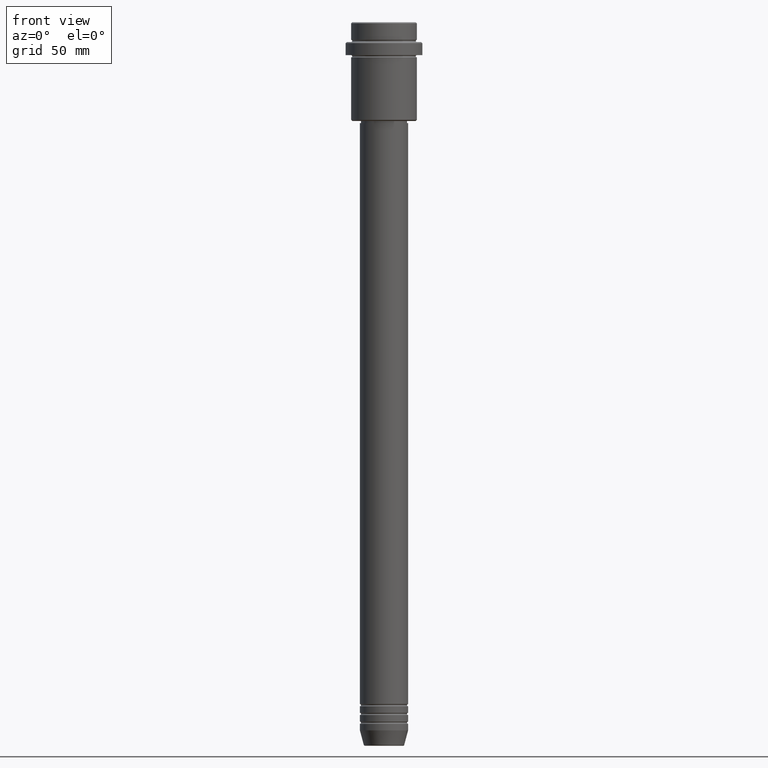
[diagram: clean part render]
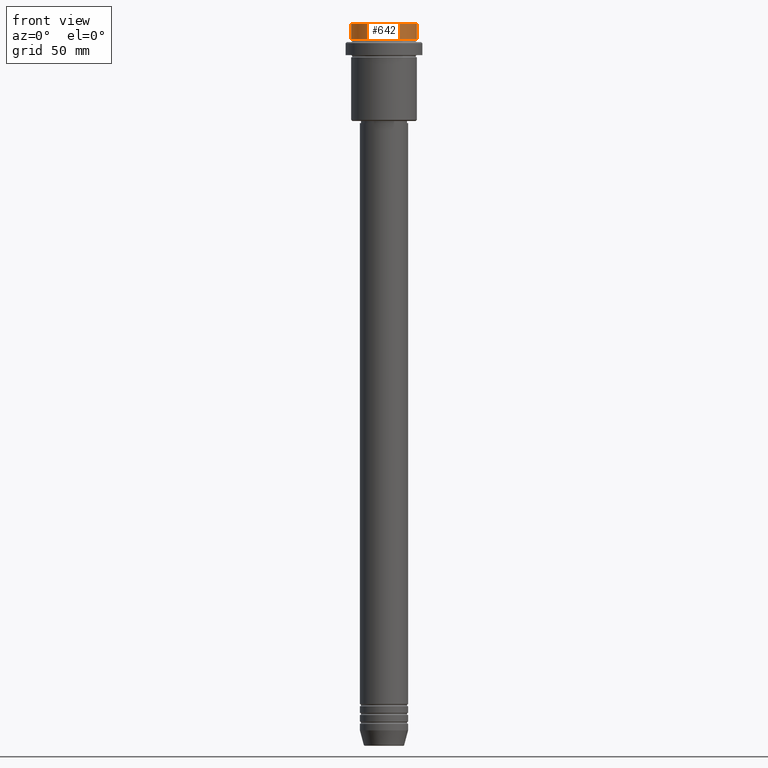
[diagram: same view with one face highlighted and labeled with its STEP entity id]
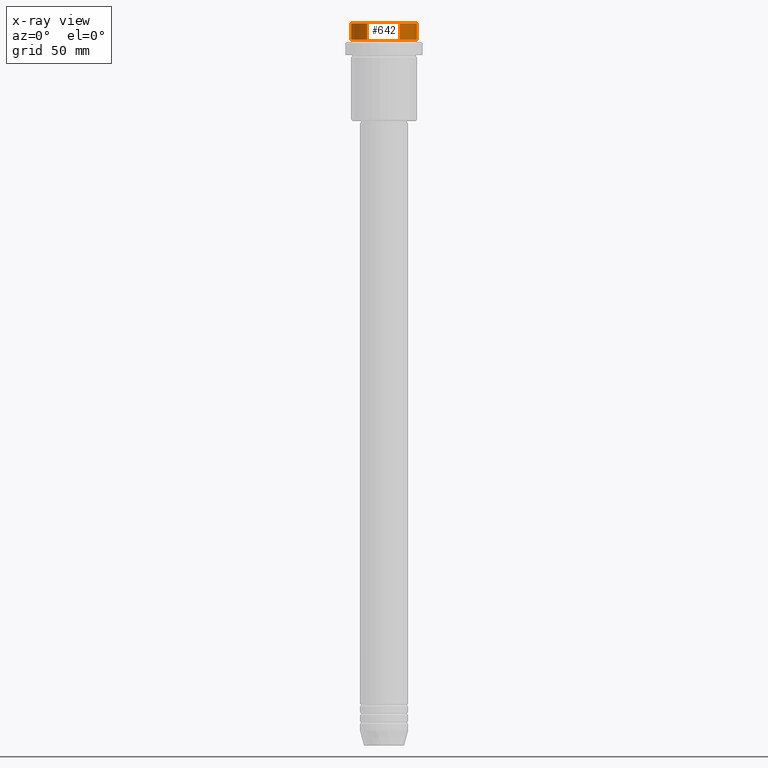
[diagram: x-ray of the same camera — body ghosted, the highlighted face saturated]
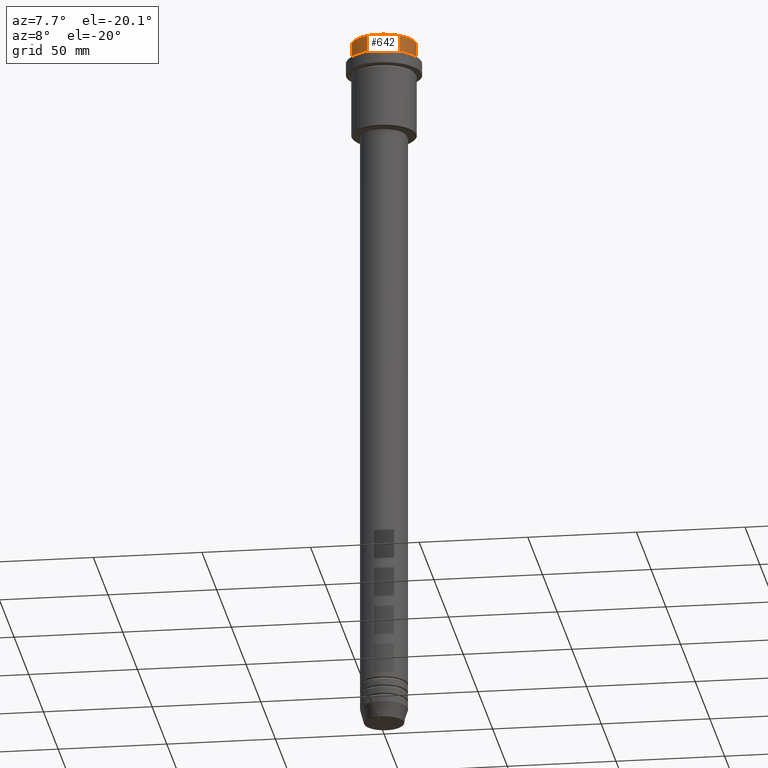
[diagram: same view with one face highlighted and labeled with its STEP entity id]
A machine part, front view. The second image highlights one B-rep face of the part: STEP entity #642.
The next image is the same camera in x-ray: the body ghosted, the highlighted face saturated — about 0% of this face is hidden behind the body in this view.
A second angle (auxiliary view) of the same face is appended — the face is thin or edge-on in the first view.
In plain terms, the highlighted cylindrical surface (edge-blend (fillet) strip) has radius 15 mm, axis along (-0, -0, 1).
Its self-contained STEP definition (entity closure, byte-faithful):
#88 = DIRECTION ( 'NONE',  ( -0.000000000000000000, -0.000000000000000000, 1.000000000000000000 ) ) ;
#101 = CARTESIAN_POINT ( 'NONE',  ( 0.000000000000000000, 0.000000000000000000, 0.000000000000000000 ) ) ;
#112 = LINE ( 'NONE', #1297, #415 ) ;
#120 = ORIENTED_EDGE ( 'NONE', *, *, #703, .F. ) ;
#180 = CARTESIAN_POINT ( 'NONE',  ( -15.00000000000000000, 1.836970198721029589E-15, -0.5000000000000107692 ) ) ;
#204 = VERTEX_POINT ( 'NONE', #1271 ) ;
#208 = CARTESIAN_POINT ( 'NONE',  ( 15.00000000000000000, 0.000000000000000000, -7.999999999999998224 ) ) ;
#274 = AXIS2_PLACEMENT_3D ( 'NONE', #1404, #1321, #444 ) ;
#283 = EDGE_CURVE ( 'NONE', #1185, #564, #1401, .T. ) ;
#320 = DIRECTION ( 'NONE',  ( -0.000000000000000000, -0.000000000000000000, 1.000000000000000000 ) ) ;
#415 = VECTOR ( 'NONE', #558, 1000.000000000000000 ) ;
#433 = DIRECTION ( 'NONE',  ( 1.000000000000000000, 0.000000000000000000, 0.000000000000000000 ) ) ;
#444 = DIRECTION ( 'NONE',  ( 1.000000000000000000, 0.000000000000000000, 0.000000000000000000 ) ) ;
#545 = CYLINDRICAL_SURFACE ( 'NONE', #1381, 15.00000000000000000 ) ;
#558 = DIRECTION ( 'NONE',  ( -0.000000000000000000, -0.000000000000000000, 1.000000000000000000 ) ) ;
#564 = VERTEX_POINT ( 'NONE', #180 ) ;
#601 = CIRCLE ( 'NONE', #1405, 15.00000000000000000 ) ;
#642 = ADVANCED_FACE ( 'NONE', ( #670 ), #545, .T. ) ;
#645 = ORIENTED_EDGE ( 'NONE', *, *, #718, .T. ) ;
#660 = ORIENTED_EDGE ( 'NONE', *, *, #283, .T. ) ;
#667 = CARTESIAN_POINT ( 'NONE',  ( 15.00000000000000000, 0.000000000000000000, -0.5000000000000107692 ) ) ;
#670 = FACE_OUTER_BOUND ( 'NONE', #849, .T. ) ;
#703 = EDGE_CURVE ( 'NONE', #204, #564, #1412, .T. ) ;
#718 = EDGE_CURVE ( 'NONE', #204, #748, #601, .T. ) ;
#748 = VERTEX_POINT ( 'NONE', #208 ) ;
#849 = EDGE_LOOP ( 'NONE', ( #120, #645, #1112, #660 ) ) ;
#904 = CARTESIAN_POINT ( 'NONE',  ( -15.00000000000000000, 1.836970198721029589E-15, 0.000000000000000000 ) ) ;
#1101 = DIRECTION ( 'NONE',  ( 1.000000000000000000, 0.000000000000000000, 0.000000000000000000 ) ) ;
#1112 = ORIENTED_EDGE ( 'NONE', *, *, #1150, .T. ) ;
#1119 = VECTOR ( 'NONE', #88, 1000.000000000000000 ) ;
#1150 = EDGE_CURVE ( 'NONE', #748, #1185, #112, .T. ) ;
#1185 = VERTEX_POINT ( 'NONE', #667 ) ;
#1225 = CARTESIAN_POINT ( 'NONE',  ( 0.000000000000000000, 0.000000000000000000, -7.999999999999998224 ) ) ;
#1271 = CARTESIAN_POINT ( 'NONE',  ( -15.00000000000000000, 1.836970198721029589E-15, -7.999999999999998224 ) ) ;
#1297 = CARTESIAN_POINT ( 'NONE',  ( 15.00000000000000000, 0.000000000000000000, 0.000000000000000000 ) ) ;
#1313 = DIRECTION ( 'NONE',  ( -0.000000000000000000, -0.000000000000000000, 1.000000000000000000 ) ) ;
#1321 = DIRECTION ( 'NONE',  ( 0.000000000000000000, 0.000000000000000000, -1.000000000000000000 ) ) ;
#1381 = AXIS2_PLACEMENT_3D ( 'NONE', #101, #1313, #433 ) ;
#1401 = CIRCLE ( 'NONE', #274, 15.00000000000000000 ) ;
#1404 = CARTESIAN_POINT ( 'NONE',  ( 0.000000000000000000, 0.000000000000000000, -0.5000000000000107692 ) ) ;
#1405 = AXIS2_PLACEMENT_3D ( 'NONE', #1225, #320, #1101 ) ;
#1412 = LINE ( 'NONE', #904, #1119 ) ;